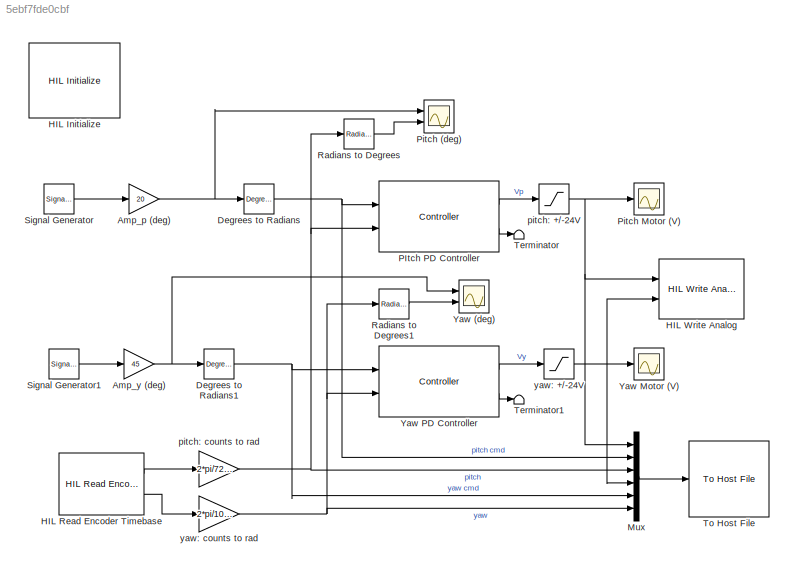
MODEL slx_5ebf7fde0cbf
KIND model
CONFIG AbsTol = auto
CONFIG EnableMultiTasking = on
CONFIG FixedStep = 0.002
CONFIG MaxStep = auto
CONFIG MinStep = auto
CONFIG RelTol = 1e-3
CONFIG SampleTimeConstraint = Unconstrained
CONFIG SolverName = ode1
CONFIG StartTime = 0.0
CONFIG StopTime = inf
BLOCK [Gain] Amp_p (deg)
  Gain = 20
BLOCK [Gain] Amp_y (deg)
  Gain = 45
BLOCK [Reference] Degrees to Radians  REF=simulink_extras/Transformations/Degrees to
Radians
  Ports = [1, 1]
  SourceBlock = simulink_extras/Transformations/Degrees to\nRadians
  SourceProductBaseCode = SL
  SourceType = DegreesToRadians
BLOCK [Reference] Degrees to Radians1  REF=simulink_extras/Transformations/Degrees to
Radians
  Ports = [1, 1]
  SourceBlock = simulink_extras/Transformations/Degrees to\nRadians
  SourceProductBaseCode = SL
  SourceType = DegreesToRadians
BLOCK [Reference] HIL Initialize  REF=quarc_library/Data Acquisition/Generic/Configuration/HIL Initialize
  AttributesFormatString = %<object_name> (%<board_type>-%<board_number>)
  Ports = []
  Priority = -99
  SourceBlock = quarc_library/Data Acquisition/Generic/Configuration/HIL Initialize
  SourceProductName = QUARC Targets
  SourceType = HIL Initialize
  UserDataPersistent = on
BLOCK [Reference] HIL Read Encoder Timebase  REF=quarc_library/Data Acquisition/Generic/Timebases/HIL Read Encoder
Timebase
  AttributesFormatString = (%<object_name>)
  Ports = [0, 2]
  SourceBlock = quarc_library/Data Acquisition/Generic/Timebases/HIL Read Encoder\nTimebase
  SourceProductName = QUARC Targets
  SourceType = HIL Read Encoder Timebase
  UserDataPersistent = on
BLOCK [Reference] HIL Write Analog  REF=quarc_library/Data Acquisition/Generic/Immediate I//O/HIL Write Analog
  AttributesFormatString = (%<object_name>)
  Ports = [2]
  SourceBlock = quarc_library/Data Acquisition/Generic/Immediate I//O/HIL Write Analog
  SourceProductName = QUARC Targets
  SourceType = HIL Write Analog
  UserDataPersistent = on
BLOCK [Mux] Mux
  DisplayOption = bar
  Inputs = 6
  Ports = [6, 1]
BLOCK [Reference] PItch PD Controller  REF=quarc_library/Continuous/Controller
  Ports = [2, 2]
  SourceBlock = quarc_library/Continuous/Controller
  SourceProductName = QUARC Targets
  SourceType = Controller
BLOCK [Scope] Pitch (deg)
  Floating = off
  NumInputPorts = 2
  Ports = [2]
  ScopeSpecificationString = Simulink.scopes.TimeScopeBlockCfg('CurrentConfiguration', extmgr.ConfigurationSet(extmgr.Configuration('Core','General UI',true),extmgr.Configuration('Core','Source UI',true),extmgr.Configuration('Sources','WiredSimulink',true),extmgr.Configuration('Visuals','Time Domain',true,'SerializedDisplays',{struct('MinYLimReal','-30.82812','MaxYLimReal','33.70312','YLabelReal','','MinYLimMag','0.00000','Ma...<+1428ch>
BLOCK [Scope] Pitch Motor (V)
  Floating = off
  NumInputPorts = 1
  Ports = [1]
  ScopeSpecificationString = Simulink.scopes.TimeScopeBlockCfg('CurrentConfiguration', extmgr.ConfigurationSet(extmgr.Configuration('Core','General UI',true),extmgr.Configuration('Core','Source UI',true),extmgr.Configuration('Sources','WiredSimulink',true,'DataLoggingVariableName','ScopeData2'),extmgr.Configuration('Visuals','Time Domain',true,'SerializedDisplays',{struct('MinYLimReal','-30.00000','MaxYLimReal','30.00000','YL...<+1466ch>
BLOCK [Reference] Radians to Degrees  REF=simulink_extras/Transformations/Radians
to Degrees
  Ports = [1, 1]
  SourceBlock = simulink_extras/Transformations/Radians\nto Degrees
  SourceProductBaseCode = SL
  SourceType = RadiansToDegrees
BLOCK [Reference] Radians to Degrees1  REF=simulink_extras/Transformations/Radians
to Degrees
  Ports = [1, 1]
  SourceBlock = simulink_extras/Transformations/Radians\nto Degrees
  SourceProductBaseCode = SL
  SourceType = RadiansToDegrees
BLOCK [SignalGenerator] Signal Generator
  Frequency = 0.05
  Ports = [0, 1]
  WaveForm = square
BLOCK [SignalGenerator] Signal Generator1
  Frequency = 0.04
  Ports = [0, 1]
  WaveForm = square
BLOCK [Terminator] Terminator
BLOCK [Terminator] Terminator1
BLOCK [Reference] To Host File  REF=quarc_library/Sinks/To Host/To Host File
  AttributesFormatString = %<final_file_name>
  Ports = [1]
  SourceBlock = quarc_library/Sinks/To Host/To Host File
  SourceProductName = QUARC Targets
  SourceType = To Host File
BLOCK [Scope] Yaw (deg)
  Floating = off
  NumInputPorts = 2
  Ports = [2]
  ScopeSpecificationString = Simulink.scopes.TimeScopeBlockCfg('CurrentConfiguration', extmgr.ConfigurationSet(extmgr.Configuration('Core','General UI',true),extmgr.Configuration('Core','Source UI',true),extmgr.Configuration('Sources','WiredSimulink',true,'DataLoggingVariableName','ScopeData1'),extmgr.Configuration('Visuals','Time Domain',true,'SerializedDisplays',{struct('MinYLimReal','-56.25','MaxYLimReal','56.25','YLabelRe...<+1500ch>
BLOCK [Scope] Yaw Motor (V)
  Floating = off
  NumInputPorts = 1
  Ports = [1]
  ScopeSpecificationString = Simulink.scopes.TimeScopeBlockCfg('CurrentConfiguration', extmgr.ConfigurationSet(extmgr.Configuration('Core','General UI',true),extmgr.Configuration('Core','Source UI',true),extmgr.Configuration('Sources','WiredSimulink',true,'DataLoggingVariableName','ScopeData3'),extmgr.Configuration('Visuals','Time Domain',true,'SerializedDisplays',{struct('MinYLimReal','-30.00000','MaxYLimReal','30.00000','YL...<+1467ch>
BLOCK [Reference] Yaw PD Controller  REF=quarc_library/Continuous/Controller
  Ports = [2, 2]
  SourceBlock = quarc_library/Continuous/Controller
  SourceProductName = QUARC Targets
  SourceType = Controller
BLOCK [Saturate] pitch: +//-24V
  LowerLimit = -24
  UpperLimit = 24
BLOCK [Gain] pitch: counts to rad
  Gain = 2*pi/720/4
BLOCK [Saturate] yaw: +//-24V
  LowerLimit = -24
  UpperLimit = 24
BLOCK [Gain] yaw: counts to rad
  Gain = 2*pi/1024/4
NET Amp_p (deg):1 -> Degrees to Radians:1, Pitch (deg):1
NET Amp_y (deg):1 -> Degrees to Radians1:1, Yaw (deg):1
NET Degrees to Radians1:1 -> Mux:5, Yaw PD Controller:1
NET Degrees to Radians:1 -> Mux:2, PItch PD Controller:1
LINE HIL Read Encoder Timebase:1 -> pitch: counts to rad:1
LINE HIL Read Encoder Timebase:2 -> yaw: counts to rad:1
LINE Mux:1 -> To Host File:1
LINE PItch PD Controller:1 -> pitch: +//-24V:1
LINE PItch PD Controller:2 -> Terminator:1
LINE Radians to Degrees1:1 -> Yaw (deg):2
LINE Radians to Degrees:1 -> Pitch (deg):2
LINE Signal Generator1:1 -> Amp_y (deg):1
LINE Signal Generator:1 -> Amp_p (deg):1
LINE Yaw PD Controller:1 -> yaw: +//-24V:1
LINE Yaw PD Controller:2 -> Terminator1:1
NET pitch: +//-24V:1 -> HIL Write Analog:1, Mux:1, Pitch Motor (V):1
NET pitch: counts to rad:1 -> Mux:3, PItch PD Controller:2, Radians to Degrees:1
NET yaw: +//-24V:1 -> HIL Write Analog:2, Mux:4, Yaw Motor (V):1
NET yaw: counts to rad:1 -> Mux:6, Radians to Degrees1:1, Yaw PD Controller:2
note: NET lines group one-source signal fan-out (src -> all destinations, sorted); 1:1 wires keep LINE
